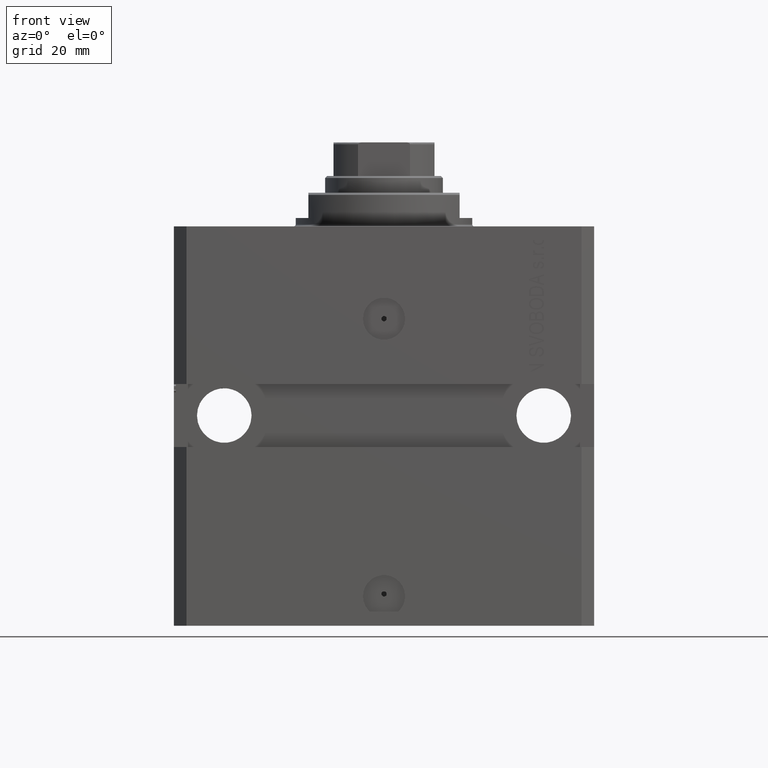
[diagram: clean part render]
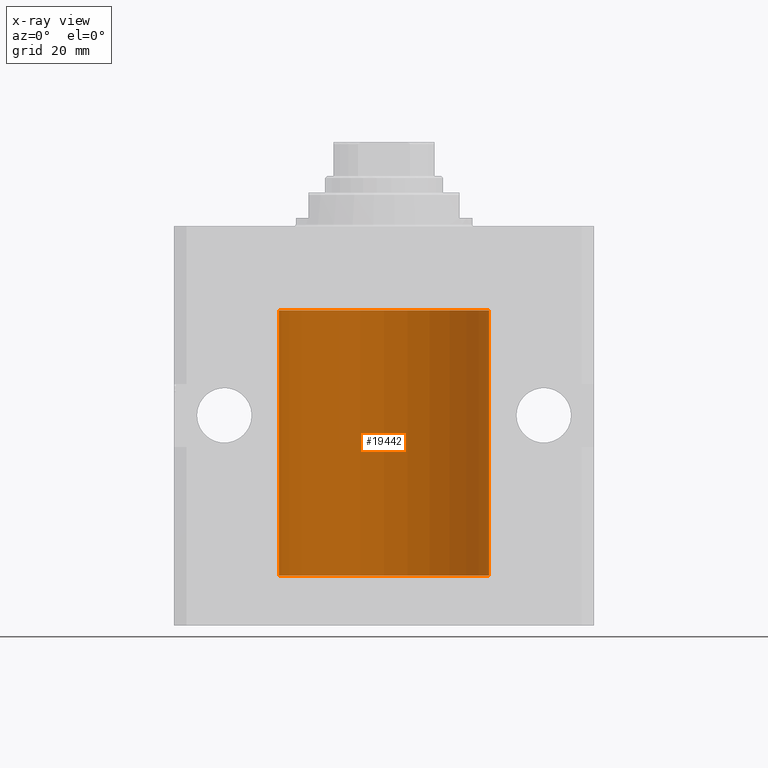
[diagram: x-ray — body ghosted, one internal face saturated and labeled with its STEP entity id]
A machine part, front view, then the same camera in x-ray: the body is ghosted and one INTERNAL B-rep face — a face not visible from any outside direction — is saturated and labeled: STEP entity #19442.
In plain terms, the highlighted cylindrical surface (partial cylindrical patch) has radius 25 mm, axis along (0, 0, 1).
Its self-contained STEP definition (entity closure, byte-faithful):
#220 = CARTESIAN_POINT ( 'NONE',  ( -25.00000000000000000, -2.172643007029407462E-14, -79.87500000000000000 ) ) ;
#253 = LINE ( 'NONE', #3652, #36401 ) ;
#539 = EDGE_CURVE ( 'NONE', #38846, #39018, #253, .T. ) ;
#2476 = ORIENTED_EDGE ( 'NONE', *, *, #33215, .F. ) ;
#2606 = EDGE_LOOP ( 'NONE', ( #2476, #19944, #6212, #21826, #32982, #30413, #12866, #31821 ) ) ;
#3087 = CARTESIAN_POINT ( 'NONE',  ( -25.00000000000008171, 3.517566451145503275E-13, -25.62500000000326850 ) ) ;
#3320 = CARTESIAN_POINT ( 'NONE',  ( -24.99957903978827289, 0.1636401650351867743, -24.39126259047981904 ) ) ;
#3450 = CARTESIAN_POINT ( 'NONE',  ( -25.00000000000008171, 3.517566451145503275E-13, -25.62500000000326850 ) ) ;
#3652 = CARTESIAN_POINT ( 'NONE',  ( -25.00000000000000000, 3.061616997868383043E-15, -83.09999999999999432 ) ) ;
#4950 = CARTESIAN_POINT ( 'NONE',  ( -25.00000000000000000, 3.061616997868383043E-15, -20.00000000000000355 ) ) ;
#5449 = CARTESIAN_POINT ( 'NONE',  ( -24.99711159039963704, 0.3843660423108775648, -80.00046193055077026 ) ) ;
#5776 = DIRECTION ( 'NONE',  ( 0.000000000000000000, 0.000000000000000000, 1.000000000000000000 ) ) ;
#5859 = DIRECTION ( 'NONE',  ( 0.000000000000000000, 0.000000000000000000, 1.000000000000000000 ) ) ;
#6212 = ORIENTED_EDGE ( 'NONE', *, *, #38154, .T. ) ;
#7531 = AXIS2_PLACEMENT_3D ( 'NONE', #42968, #5859, #42011 ) ;
#8166 = CARTESIAN_POINT ( 'NONE',  ( -25.00000000000000000, -9.603917560234690571E-15, -24.37500000000000000 ) ) ;
#8246 = DIRECTION ( 'NONE',  ( 1.000000000000000000, 0.000000000000000000, 0.000000000000000000 ) ) ;
#8964 = DIRECTION ( 'NONE',  ( -0.000000000000000000, -0.000000000000000000, 1.000000000000000000 ) ) ;
#9210 = CARTESIAN_POINT ( 'NONE',  ( -25.00000000000008171, 3.517566579358498221E-13, -81.12500000000328271 ) ) ;
#9295 = CARTESIAN_POINT ( 'NONE',  ( -24.99402840204668408, 0.5587119681668529791, -80.82511555871103326 ) ) ;
#9691 = AXIS2_PLACEMENT_3D ( 'NONE', #30911, #8964, #8246 ) ;
#10080 = CARTESIAN_POINT ( 'NONE',  ( -25.00000000000000000, -9.603917560234690571E-15, -24.37500000000000000 ) ) ;
#10479 = EDGE_CURVE ( 'NONE', #20290, #38385, #22177, .T. ) ;
#10751 = CARTESIAN_POINT ( 'NONE',  ( 25.00000000000000000, 0.000000000000000000, -83.09999999999999432 ) ) ;
#10784 = CARTESIAN_POINT ( 'NONE',  ( -24.99999999999998934, 0.1631672031814573320, -25.62499999999985079 ) ) ;
#11714 = CARTESIAN_POINT ( 'NONE',  ( -25.00000000000000000, 3.061616997868383043E-15, -83.09999999999999432 ) ) ;
#11773 = CARTESIAN_POINT ( 'NONE',  ( -25.00000000000008171, 3.517566579358498221E-13, -81.12500000000328271 ) ) ;
#11999 = VERTEX_POINT ( 'NONE', #8166 ) ;
#12045 = EDGE_CURVE ( 'NONE', #38846, #30749, #15835, .T. ) ;
#12866 = ORIENTED_EDGE ( 'NONE', *, *, #539, .F. ) ;
#13032 = VERTEX_POINT ( 'NONE', #46976 ) ;
#13940 = CARTESIAN_POINT ( 'NONE',  ( -24.99218483271614843, 0.6250578298876515726, -25.16284432778144975 ) ) ;
#14415 = CARTESIAN_POINT ( 'NONE',  ( -25.00000000000001421, 0.08259386895071110790, -24.37500000000000000 ) ) ;
#14929 = CARTESIAN_POINT ( 'NONE',  ( -25.00000000000000000, 0.08259386895070071344, -79.87500000000000000 ) ) ;
#14964 = DIRECTION ( 'NONE',  ( -0.000000000000000000, -0.000000000000000000, 1.000000000000000000 ) ) ;
#15165 = CARTESIAN_POINT ( 'NONE',  ( -24.99218772708281122, 0.6249420913990306747, -80.33671206966755562 ) ) ;
#15835 = B_SPLINE_CURVE_WITH_KNOTS ( 'NONE', 3,
 ( #220, #14929, #30114, #44800, #5449, #22881, #15165, #45937, #9295, #16531, #22406, #11773 ),
 .UNSPECIFIED., .F., .F.,
 ( 4, 2, 2, 2, 2, 4 ),
 ( 1.760582088384631428E-18, 0.0002442639708601806493, 0.0004885279417203595639, 0.0009770558834406879029, 0.001465583825161016242, 0.001954111766881344581 ),
 .UNSPECIFIED. ) ;
#16531 = CARTESIAN_POINT ( 'NONE',  ( -24.99815474281802352, 0.3253832813992149631, -81.05855609393753980 ) ) ;
#18610 = EDGE_CURVE ( 'NONE', #11999, #20308, #47490, .T. ) ;
#18819 = LINE ( 'NONE', #26287, #36524 ) ;
#18836 = EDGE_CURVE ( 'NONE', #13032, #20308, #38481, .T. ) ;
#19053 = DIRECTION ( 'NONE',  ( -0.000000000000000000, -0.000000000000000000, 1.000000000000000000 ) ) ;
#19442 = ADVANCED_FACE ( 'NONE', ( #38596 ), #27058, .F. ) ;
#19944 = ORIENTED_EDGE ( 'NONE', *, *, #10479, .F. ) ;
#20290 = VERTEX_POINT ( 'NONE', #10751 ) ;
#20308 = VERTEX_POINT ( 'NONE', #4950 ) ;
#20483 = CARTESIAN_POINT ( 'NONE',  ( 0.000000000000000000, 0.000000000000000000, -20.00000000000000355 ) ) ;
#20787 = AXIS2_PLACEMENT_3D ( 'NONE', #20483, #5776, #27948 ) ;
#21415 = CARTESIAN_POINT ( 'NONE',  ( -24.99812965334069403, 0.3150303239408847600, -24.45401901831676383 ) ) ;
#21740 = VECTOR ( 'NONE', #40939, 1000.000000000000000 ) ;
#21826 = ORIENTED_EDGE ( 'NONE', *, *, #18836, .T. ) ;
#22177 = CIRCLE ( 'NONE', #7531, 25.00000000000000000 ) ;
#22406 = CARTESIAN_POINT ( 'NONE',  ( -24.99999999999998579, 0.1631672031814578039, -81.12499999999981526 ) ) ;
#22479 = EDGE_CURVE ( 'NONE', #11999, #39018, #41861, .T. ) ;
#22881 = CARTESIAN_POINT ( 'NONE',  ( -24.99405295648007908, 0.5573304927633301320, -80.17348832933667779 ) ) ;
#25264 = CARTESIAN_POINT ( 'NONE',  ( -24.99711159039964414, 0.3843660423108813950, -24.50046193055078803 ) ) ;
#26287 = CARTESIAN_POINT ( 'NONE',  ( -25.00000000000000000, 3.061616997868383043E-15, -83.09999999999999432 ) ) ;
#27058 = CYLINDRICAL_SURFACE ( 'NONE', #9691, 25.00000000000000000 ) ;
#27948 = DIRECTION ( 'NONE',  ( 1.000000000000000000, 0.000000000000000000, 0.000000000000000000 ) ) ;
#28727 = CARTESIAN_POINT ( 'NONE',  ( -25.00000000000000000, 3.061616997868383043E-15, -83.09999999999999432 ) ) ;
#29673 = DIRECTION ( 'NONE',  ( -0.000000000000000000, -0.000000000000000000, 1.000000000000000000 ) ) ;
#29775 = CARTESIAN_POINT ( 'NONE',  ( -25.00000000000000000, -2.172643007029407462E-14, -79.87500000000000000 ) ) ;
#30114 = CARTESIAN_POINT ( 'NONE',  ( -24.99957903978828000, 0.1636401650351763382, -79.89126259047981193 ) ) ;
#30413 = ORIENTED_EDGE ( 'NONE', *, *, #22479, .T. ) ;
#30603 = LINE ( 'NONE', #41185, #21740 ) ;
#30749 = VERTEX_POINT ( 'NONE', #9210 ) ;
#30911 = CARTESIAN_POINT ( 'NONE',  ( 0.000000000000000000, 0.000000000000000000, -83.09999999999999432 ) ) ;
#31821 = ORIENTED_EDGE ( 'NONE', *, *, #12045, .T. ) ;
#32425 = VECTOR ( 'NONE', #29673, 1000.000000000000000 ) ;
#32982 = ORIENTED_EDGE ( 'NONE', *, *, #18610, .F. ) ;
#33215 = EDGE_CURVE ( 'NONE', #38385, #30749, #18819, .T. ) ;
#36092 = CARTESIAN_POINT ( 'NONE',  ( -24.99815474281801997, 0.3253832813992120210, -25.55855609393753269 ) ) ;
#36401 = VECTOR ( 'NONE', #14964, 1000.000000000000000 ) ;
#36524 = VECTOR ( 'NONE', #19053, 1000.000000000000000 ) ;
#38154 = EDGE_CURVE ( 'NONE', #20290, #13032, #30603, .T. ) ;
#38385 = VERTEX_POINT ( 'NONE', #11714 ) ;
#38481 = CIRCLE ( 'NONE', #20787, 25.00000000000000000 ) ;
#38596 = FACE_OUTER_BOUND ( 'NONE', #2606, .T. ) ;
#38846 = VERTEX_POINT ( 'NONE', #29775 ) ;
#39018 = VERTEX_POINT ( 'NONE', #3450 ) ;
#39476 = CARTESIAN_POINT ( 'NONE',  ( -24.99405295648008263, 0.5573304927633336847, -24.67348832933669200 ) ) ;
#40939 = DIRECTION ( 'NONE',  ( -0.000000000000000000, -0.000000000000000000, 1.000000000000000000 ) ) ;
#41185 = CARTESIAN_POINT ( 'NONE',  ( 25.00000000000000000, 0.000000000000000000, -83.09999999999999432 ) ) ;
#41861 = B_SPLINE_CURVE_WITH_KNOTS ( 'NONE', 3,
 ( #10080, #14415, #3320, #21415, #25264, #39476, #46940, #13940, #43337, #36092, #10784, #3087 ),
 .UNSPECIFIED., .F., .F.,
 ( 4, 2, 2, 2, 2, 4 ),
 ( 4.396951630244787669E-19, 0.0002442639708601663379, 0.0004885279417203322420, 0.0009770558834406712061, 0.001465583825161009953, 0.001954111766881348917 ),
 .UNSPECIFIED. ) ;
#42011 = DIRECTION ( 'NONE',  ( 1.000000000000000000, 0.000000000000000000, 0.000000000000000000 ) ) ;
#42968 = CARTESIAN_POINT ( 'NONE',  ( 0.000000000000000000, 0.000000000000000000, -83.09999999999999432 ) ) ;
#43337 = CARTESIAN_POINT ( 'NONE',  ( -24.99402840204668408, 0.5587119681668532012, -25.32511555871104747 ) ) ;
#44800 = CARTESIAN_POINT ( 'NONE',  ( -24.99812965334069759, 0.3150303239408748790, -79.95401901831677094 ) ) ;
#45937 = CARTESIAN_POINT ( 'NONE',  ( -24.99218483271614843, 0.6250578298876484640, -80.66284432778144264 ) ) ;
#46940 = CARTESIAN_POINT ( 'NONE',  ( -24.99218772708281477, 0.6249420913990341164, -24.83671206966754852 ) ) ;
#46976 = CARTESIAN_POINT ( 'NONE',  ( 25.00000000000000000, 0.000000000000000000, -20.00000000000000355 ) ) ;
#47490 = LINE ( 'NONE', #28727, #32425 ) ;